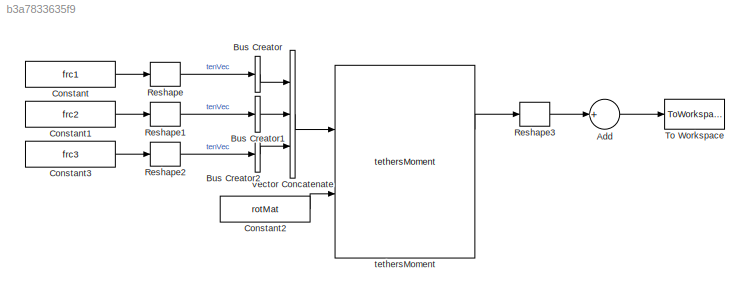
MODEL slx_b3a7833635f9
KIND model
CONFIG AbsTol = auto
CONFIG EnableMultiTasking = off
CONFIG FixedStep = auto
CONFIG MaxStep = auto
CONFIG MinStep = auto
CONFIG RelTol = 1e-3
CONFIG SampleTimeConstraint = Unconstrained
CONFIG Solver = VariableStepAuto
CONFIG SolverName = VariableStepAuto
CONFIG StartTime = 0.0
CONFIG StopTime = 0
BLOCK [Sum] Add
  CollapseDim = 2
  CollapseMode = Specified dimension
  InputSameDT = off
  Inputs = +
  OutDataTypeStr = Inherit: Inherit via internal rule
  Ports = [1, 1]
  SaturateOnIntegerOverflow = off
BLOCK [BusCreator] Bus Creator
  DisplayOption = bar
  InheritFromInputs = on
  Inputs = 1
  NonVirtualBus = on
  OutDataTypeStr = Bus: singleBus
  Ports = [1, 1]
BLOCK [BusCreator] Bus Creator1
  DisplayOption = bar
  InheritFromInputs = on
  Inputs = 1
  NonVirtualBus = on
  OutDataTypeStr = Bus: singleBus
  Ports = [1, 1]
BLOCK [BusCreator] Bus Creator2
  DisplayOption = bar
  InheritFromInputs = on
  Inputs = 1
  NonVirtualBus = on
  OutDataTypeStr = Bus: singleBus
  Ports = [1, 1]
BLOCK [Constant] Constant
  Value = frc1
BLOCK [Constant] Constant1
  Value = frc2
BLOCK [Constant] Constant2
  Value = rotMat
BLOCK [Constant] Constant3
  Value = frc3
BLOCK [Reshape] Reshape
  OutputDimensionality = Column vector (2-D)
  Ports = [1, 1]
BLOCK [Reshape] Reshape1
  OutputDimensionality = Column vector (2-D)
  Ports = [1, 1]
BLOCK [Reshape] Reshape2
  OutputDimensionality = Column vector (2-D)
  Ports = [1, 1]
BLOCK [Reshape] Reshape3
  OutputDimensionality = Customize
  OutputDimensions = [3 numel(arms)]
  Ports = [1, 1]
BLOCK [ToWorkspace] To Workspace
  FixptAsFi = on
  MaxDataPoints = inf
  Ports = [1]
  SampleTime = -1
  Save2DSignal = 3-D array (concatenate along third dimension)
  SaveFormat = Timeseries
  VariableName = simout
BLOCK [Concatenate] Vector Concatenate
  NumInputs = 3
  Ports = [3, 1]
BLOCK [Reference] tethersMoment  REF=tethersMoment_cl/tethersMoment
  Ports = [2, 2]
  SourceBlock = tethersMoment_cl/tethersMoment
LINE Add:1 -> To Workspace:1
LINE Bus Creator1:1 -> Vector Concatenate:2
LINE Bus Creator2:1 -> Vector Concatenate:3
LINE Bus Creator:1 -> Vector Concatenate:1
LINE Constant1:1 -> Reshape1:1
LINE Constant2:1 -> tethersMoment:2
LINE Constant3:1 -> Reshape2:1
LINE Constant:1 -> Reshape:1
LINE Reshape1:1 -> Bus Creator1:1
LINE Reshape2:1 -> Bus Creator2:1
LINE Reshape3:1 -> Add:1
LINE Reshape:1 -> Bus Creator:1
LINE Vector Concatenate:1 -> tethersMoment:1
LINE tethersMoment:1 -> Reshape3:1
